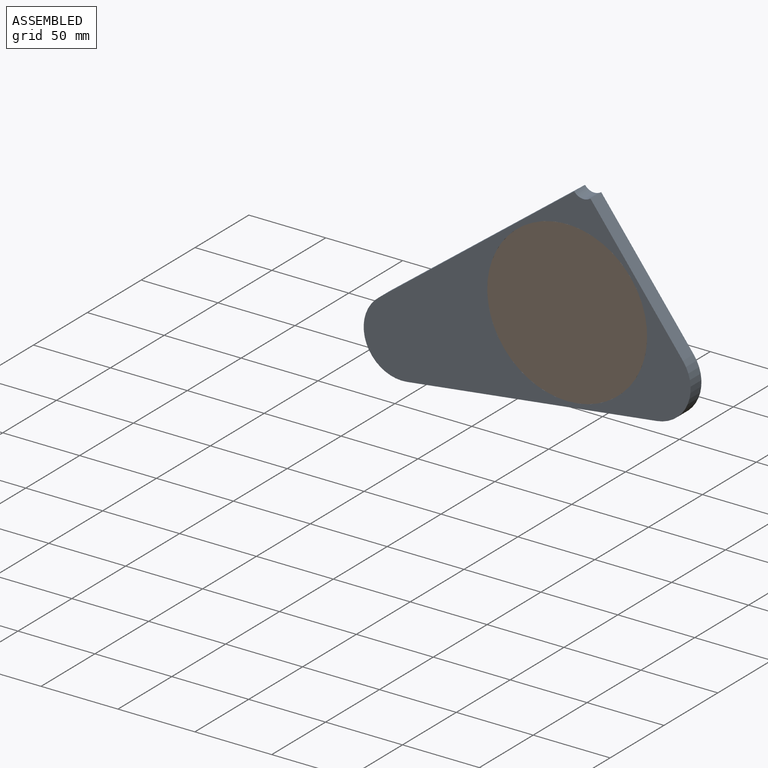
[diagram: assembled view]
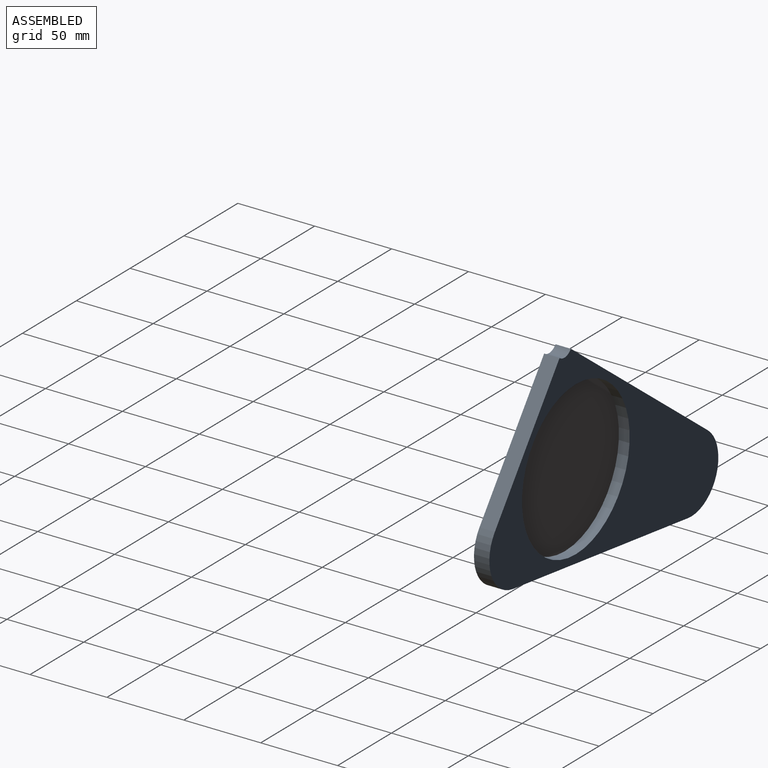
[diagram: assembled view, second angle]
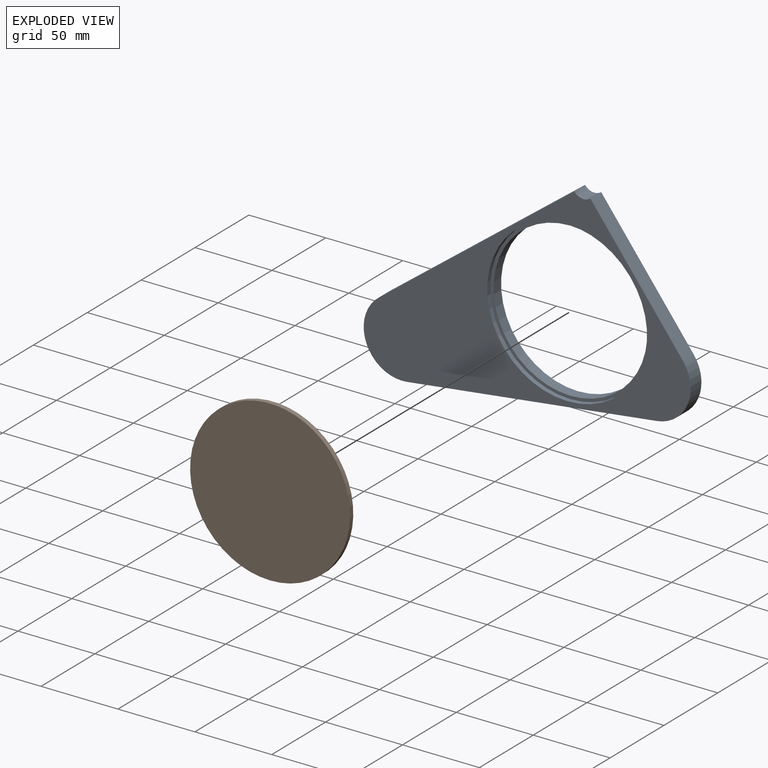
[diagram: exploded view]
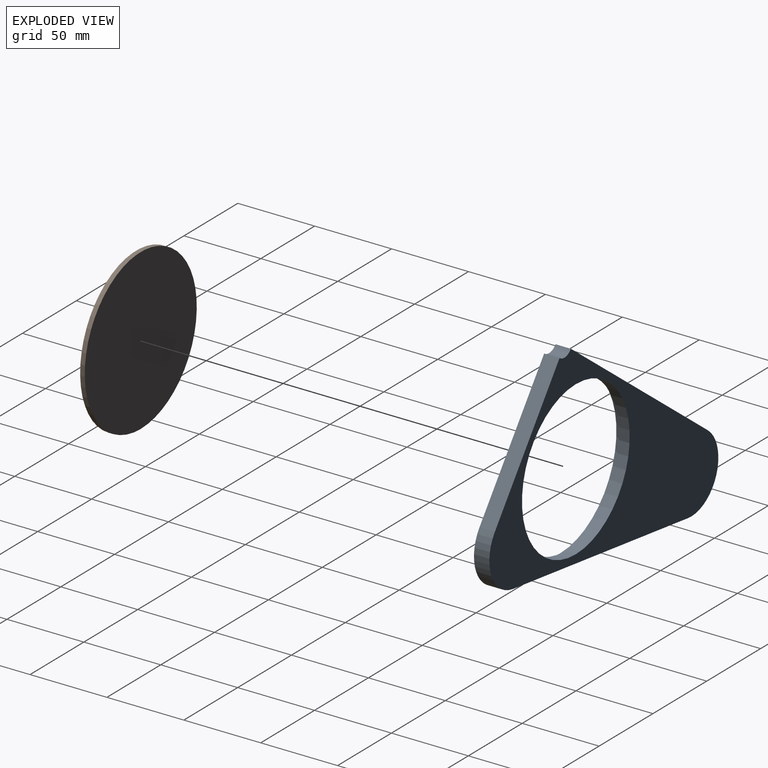
[diagram: exploded view, second angle]
ASSEMBLY  parts=2 mates=2
PART A: 11 faces, bbox 212.6x10x141.3 mm
  f0: plane 79.25x60.1mm, normal (0.8,0,0.6), area 994.6mm2, adj f2,f5,f6,f7
  f1: plane 162.64x20.48mm, normal (0.12,0,-0.99), area 1639.2mm2, adj f2,f4,f5,f6
  f2: cylinder r=25mm len=39.91mm, axis (0,1,0), area 523.6mm2, adj f0,f1,f5,f6
  f3: plane 127.05x96.36mm, normal (-0.6,0,0.8), area 1594.6mm2, adj f4,f5,f6,f7
  f4: cylinder r=25mm len=44.92mm, axis (0,1,0), area 654.5mm2, adj f1,f3,f5,f6
  f5: plane 212.64x141.28mm, normal (0,-1,0), area 9072.4mm2, adj f0,f1,f2,f3,f4,f7,f8
  f6: plane 212.64x141.28mm, normal (0,1,0), area 9713.3mm2, adj f0,f1,f2,f3,f4,f7,f10
  f7: cylinder r=7.5mm len=10.51mm, axis (0,-1,0), area 117.8mm2, adj f0,f3,f5,f6
  f8: cylinder r=52mm len=104mm, axis (0,-1,0), area 980.2mm2, adj f5,f9
  f9: plane 104x104mm, normal (0,-1,0), area 640.9mm2, adj f8,f10
  f10: cylinder r=50mm len=100mm, axis (0,-1,0), area 2199.1mm2, adj f6,f9
PART B: 3 faces, bbox 104x3x104 mm
  f0: cylinder r=52mm len=104mm, axis (0,1,0), area 980.2mm2, adj f1,f2
  f1: plane 104x104mm, normal (0,-1,0), area 8494.9mm2, adj f0
  f2: plane 104x104mm, normal (0,1,0), area 8494.9mm2, adj f0
PLACE A t=(-101.26,-71,-30.86)mm
PLACE B t=(-101.26,-78,-30.86)mm
MATE cylindrical B.f0 <-> A.f10  axis (0,-1,0) through (-101.26,-81,-30.86)mm
MATE fastened A.f8 <-> B.f0  axis (0,-1,0) through (-101.26,-78,-30.86)mm
